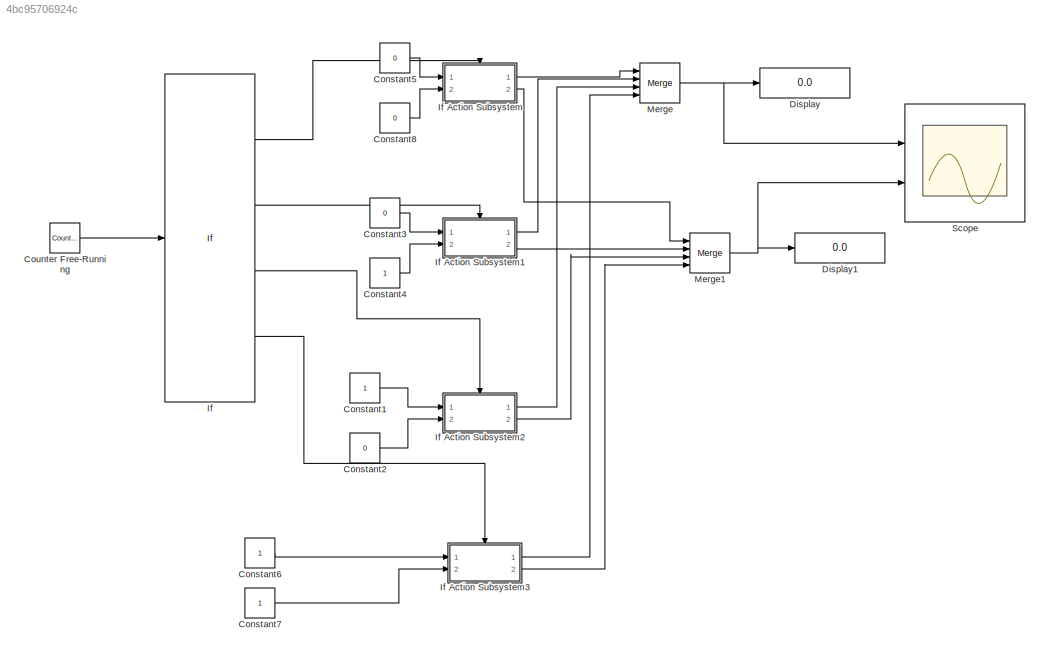
MODEL slx_4bc95706924c
KIND model
CONFIG AbsTol = auto
CONFIG EnableMultiTasking = on
CONFIG FixedStep = auto
CONFIG MaxStep = auto
CONFIG MinStep = auto
CONFIG RelTol = 1e-3
CONFIG SampleTimeConstraint = Unconstrained
CONFIG SolverName = ode45
CONFIG StartTime = 0.0
CONFIG StopTime = 10.0
BLOCK [Constant] Constant1
  OutDataTypeStr = boolean
BLOCK [Constant] Constant2
  OutDataTypeStr = boolean
  Value = 0
BLOCK [Constant] Constant3
  OutDataTypeStr = boolean
  Value = 0
BLOCK [Constant] Constant4
  OutDataTypeStr = boolean
BLOCK [Constant] Constant5
  OutDataTypeStr = boolean
  Value = 0
BLOCK [Constant] Constant6
  OutDataTypeStr = boolean
BLOCK [Constant] Constant7
  OutDataTypeStr = boolean
BLOCK [Constant] Constant8
  OutDataTypeStr = boolean
  Value = 0
BLOCK [Reference] Counter Free-Running  REF=simulink/Sources/Counter
Free-Running
  Ports = [0, 1]
  SourceBlock = simulink/Sources/Counter\nFree-Running
  SourceProductBaseCode = SL
  SourceType = Counter Free-Running
BLOCK [Display] Display
  Decimation = 1
  Ports = [1]
BLOCK [Display] Display1
  Decimation = 1
  Ports = [1]
BLOCK [If] If
  ElseIfExpressions = u1==1, u1==2, u1==3
  IfExpression = u1==0
  Ports = [1, 4]
  ShowElse = off
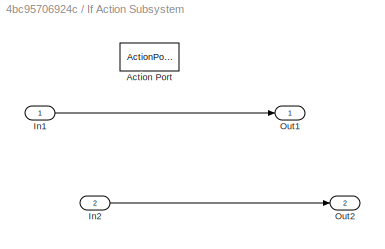
BLOCK [SubSystem] If Action Subsystem
  Ports = [2, 2, 0, 0, 0, 0, 0, 1]
  RequestExecContextInheritance = off
  TreatAsAtomicUnit = on
BLOCK [ActionPort] If Action Subsystem/Action Port
  ActionPortLabel = if(u1==0)
BLOCK [Inport] If Action Subsystem/In1
BLOCK [Inport] If Action Subsystem/In2
  Port = 2
BLOCK [Outport] If Action Subsystem/Out1
BLOCK [Outport] If Action Subsystem/Out2
  Port = 2
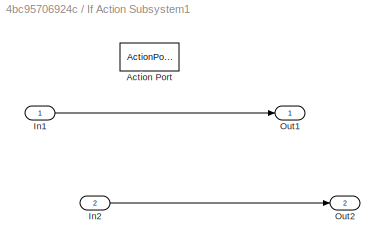
BLOCK [SubSystem] If Action Subsystem1
  Ports = [2, 2, 0, 0, 0, 0, 0, 1]
  RequestExecContextInheritance = off
  TreatAsAtomicUnit = on
BLOCK [ActionPort] If Action Subsystem1/Action Port
  ActionPortLabel = elseif(u1==1)
BLOCK [Inport] If Action Subsystem1/In1
BLOCK [Inport] If Action Subsystem1/In2
  Port = 2
BLOCK [Outport] If Action Subsystem1/Out1
BLOCK [Outport] If Action Subsystem1/Out2
  Port = 2
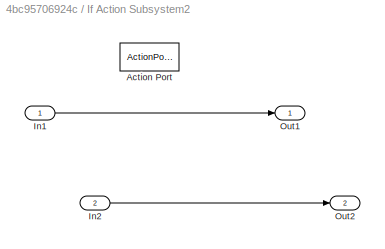
BLOCK [SubSystem] If Action Subsystem2
  Ports = [2, 2, 0, 0, 0, 0, 0, 1]
  RequestExecContextInheritance = off
  TreatAsAtomicUnit = on
BLOCK [ActionPort] If Action Subsystem2/Action Port
  ActionPortLabel = elseif( u1==2)
BLOCK [Inport] If Action Subsystem2/In1
BLOCK [Inport] If Action Subsystem2/In2
  Port = 2
BLOCK [Outport] If Action Subsystem2/Out1
BLOCK [Outport] If Action Subsystem2/Out2
  Port = 2
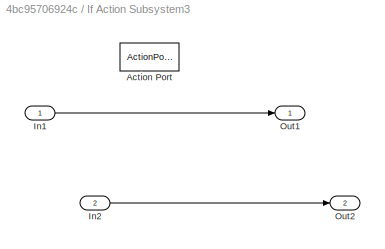
BLOCK [SubSystem] If Action Subsystem3
  Ports = [2, 2, 0, 0, 0, 0, 0, 1]
  RequestExecContextInheritance = off
  TreatAsAtomicUnit = on
BLOCK [ActionPort] If Action Subsystem3/Action Port
  ActionPortLabel = elseif( u1==3)
BLOCK [Inport] If Action Subsystem3/In1
BLOCK [Inport] If Action Subsystem3/In2
  Port = 2
BLOCK [Outport] If Action Subsystem3/Out1
BLOCK [Outport] If Action Subsystem3/Out2
  Port = 2
BLOCK [Merge] Merge
  Inputs = 4
  Ports = [4, 1]
BLOCK [Merge] Merge1
  Inputs = 4
  Ports = [4, 1]
BLOCK [Scope] Scope
  Floating = off
  NumInputPorts = 2
  Ports = [2]
  ScopeSpecificationString = Simulink.scopes.TimeScopeBlockCfg('CurrentConfiguration', extmgr.ConfigurationSet(extmgr.Configuration('Core','General UI',true),extmgr.Configuration('Core','Source UI',true),extmgr.Configuration('Sources','WiredSimulink',true),extmgr.Configuration('Visuals','Time Domain',true,'SerializedDisplays',{struct('MinYLimReal','-0.125','MaxYLimReal','1.125','YLabelReal','','MinYLimMag','0.00000','MaxYLimM...<+1998ch>
LINE Constant1:1 -> If Action Subsystem2:1
LINE Constant2:1 -> If Action Subsystem2:2
LINE Constant3:1 -> If Action Subsystem1:1
LINE Constant4:1 -> If Action Subsystem1:2
LINE Constant5:1 -> If Action Subsystem:1
LINE Constant6:1 -> If Action Subsystem3:1
LINE Constant7:1 -> If Action Subsystem3:2
LINE Constant8:1 -> If Action Subsystem:2
LINE Counter Free-Running:1 -> If:1
LINE If Action Subsystem/In1:1 -> If Action Subsystem/Out1:1
LINE If Action Subsystem/In2:1 -> If Action Subsystem/Out2:1
LINE If Action Subsystem1/In1:1 -> If Action Subsystem1/Out1:1
LINE If Action Subsystem1/In2:1 -> If Action Subsystem1/Out2:1
LINE If Action Subsystem1:1 -> Merge:2
LINE If Action Subsystem1:2 -> Merge1:2
LINE If Action Subsystem2/In1:1 -> If Action Subsystem2/Out1:1
LINE If Action Subsystem2/In2:1 -> If Action Subsystem2/Out2:1
LINE If Action Subsystem2:1 -> Merge:3
LINE If Action Subsystem2:2 -> Merge1:3
LINE If Action Subsystem3/In1:1 -> If Action Subsystem3/Out1:1
LINE If Action Subsystem3/In2:1 -> If Action Subsystem3/Out2:1
LINE If Action Subsystem3:1 -> Merge:4
LINE If Action Subsystem3:2 -> Merge1:4
LINE If Action Subsystem:1 -> Merge:1
LINE If Action Subsystem:2 -> Merge1:1
LINE If:1 -> If Action Subsystem:ifaction
LINE If:2 -> If Action Subsystem1:ifaction
LINE If:3 -> If Action Subsystem2:ifaction
LINE If:4 -> If Action Subsystem3:ifaction
NET Merge1:1 -> Display1:1, Scope:2
NET Merge:1 -> Display:1, Scope:1
note: NET lines group one-source signal fan-out (src -> all destinations, sorted); 1:1 wires keep LINE
